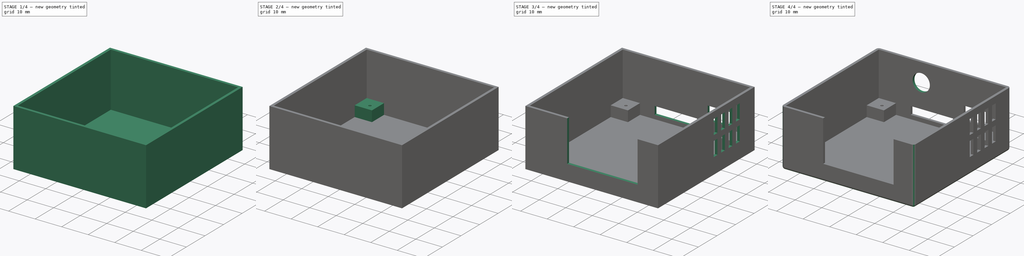
[diagram: build sequence overview — one tinted view per stage of 4, left to right]
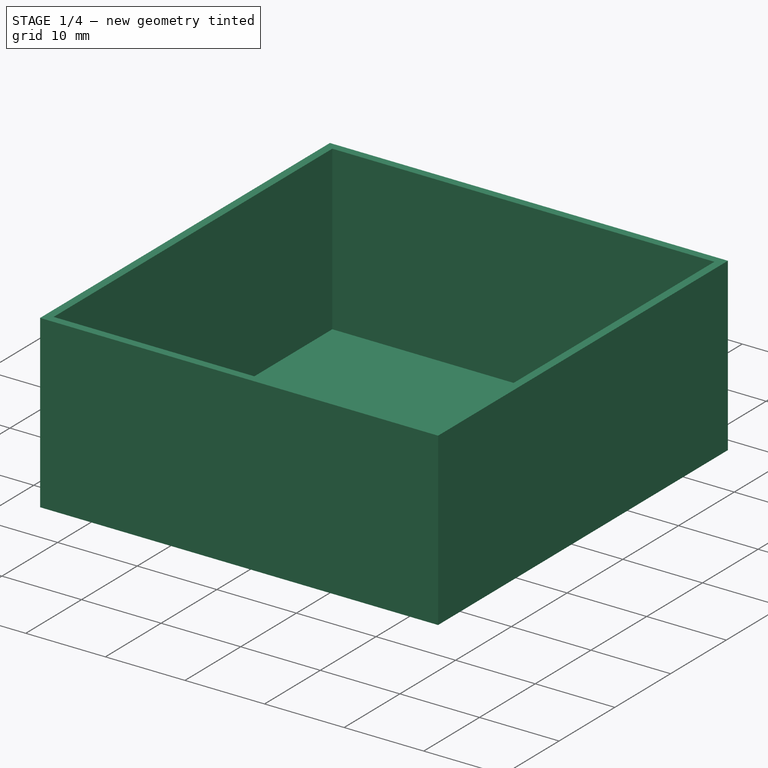
[diagram: stage 1 of 4 — iso view after this stage's code; geometry added in this stage tinted green]
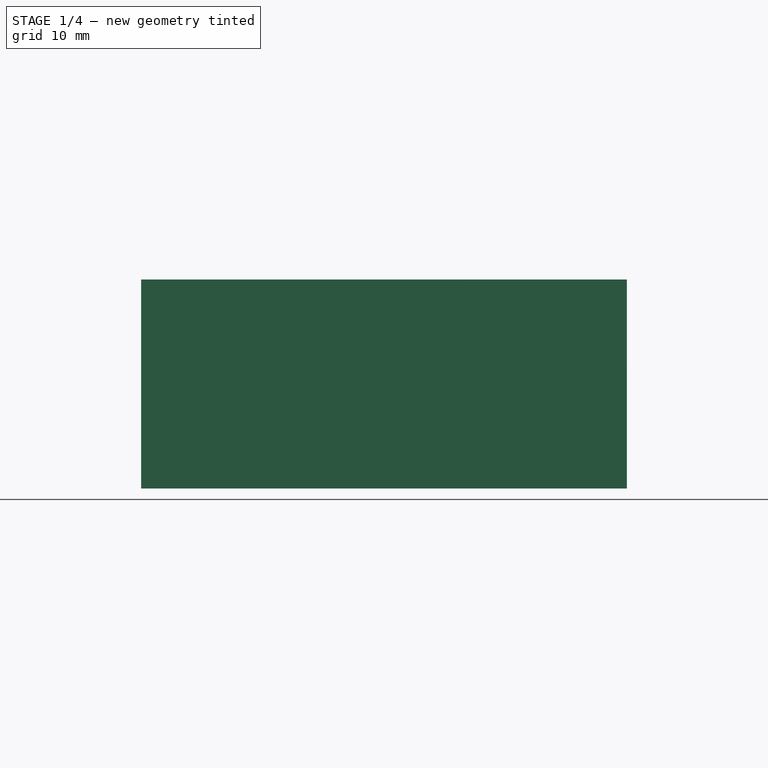
[diagram: stage 1 of 4 — front view after this stage's code; geometry added in this stage tinted green]
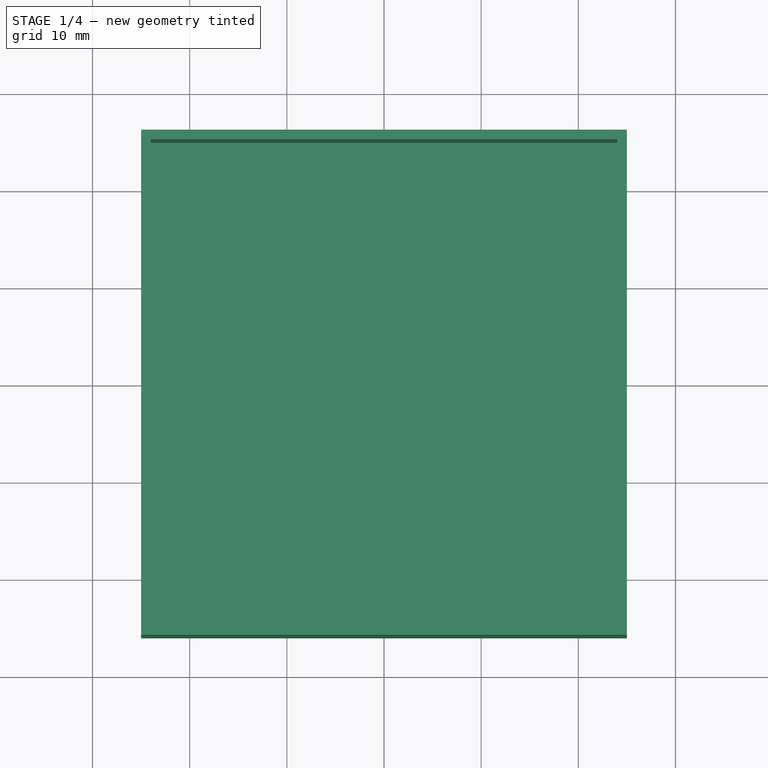
[diagram: stage 1 of 4 — top view after this stage's code; geometry added in this stage tinted green]
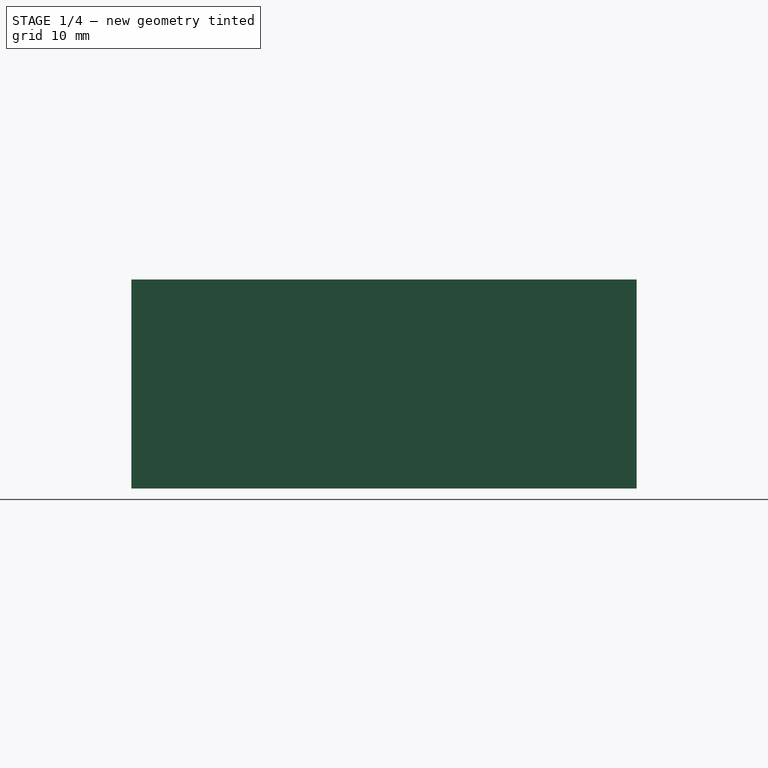
[diagram: stage 1 of 4 — right view after this stage's code; geometry added in this stage tinted green]
FCSTD DOCUMENT  (FreeCAD 0.18R16117 (Git))
Label: Orange Pi Zero Case
License: All rights reserved
LicenseURL: http://en.wikipedia.org/wiki/All_rights_reserved
objects: Sketcher::SketchObject×8, PartDesign::Pocket×6, PartDesign::Pad×2, PartDesign::Plane×1, PartDesign::Fillet×1, PartDesign::Body×1
note: 27 computed .brp shape members not serialized (recipe doc carries the construction recipe); baked Part::Feature solids carry a one-line shape summary decoded from their .brp

FEATURE [Sketcher::SketchObject] Sketch
  MapMode = 5
  Support = -> [XY_Plane]
  sketch-geometry (4):
    g0: LineSegment StartX=-25 StartY=26 StartZ=0 EndX=25 EndY=26 EndZ=0
    g1: LineSegment StartX=25 StartY=26 StartZ=0 EndX=25 EndY=-26 EndZ=0
    g2: LineSegment StartX=25 StartY=-26 StartZ=0 EndX=-25 EndY=-26 EndZ=0
    g3: LineSegment StartX=-25 StartY=-26 StartZ=0 EndX=-25 EndY=26 EndZ=0
  constraints (12):
    c: Coincident(g0,g1)
    c: Coincident(g1,g2)
    c: Coincident(g2,g3)
    c: Coincident(g3,g0)
    c: Horizontal(g0)
    c: Horizontal(g2)
    c: Vertical(g1)
    c: Vertical(g3)
    c: Distance(g0) = 50
    c: Distance(g3) = 52
    c: DistanceX(g0) = 25
    c: DistanceY(g0) = 26
FEATURE [PartDesign::Pad] Pad
  Length = 21.5
  Length2 = 100
  Profile = -> Sketch
  Type = 0
FEATURE [Sketcher::SketchObject] Sketch001
  ExternalGeometry = -> [Pad]
  MapMode = 5
  Placement = pos=(0,0,21.5) rot=(0,0,1;0rad)
  Support = -> [Pad]
  sketch-geometry (4):
    g0: LineSegment StartX=-24 StartY=25 StartZ=0 EndX=24 EndY=25 EndZ=0
    g1: LineSegment StartX=24 StartY=25 StartZ=0 EndX=24 EndY=-25 EndZ=0
    g2: LineSegment StartX=24 StartY=-25 StartZ=0 EndX=-24 EndY=-25 EndZ=0
    g3: LineSegment StartX=-24 StartY=-25 StartZ=0 EndX=-24 EndY=25 EndZ=0
  constraints (12):
    c: Coincident(g0,g1)
    c: Coincident(g1,g2)
    c: Coincident(g2,g3)
    c: Coincident(g3,g0)
    c: Horizontal(g0)
    c: Horizontal(g2)
    c: Vertical(g1)
    c: Vertical(g3)
    c: DistanceX(g-3,g0) = 1
    c: DistanceY(g0,g-3) = 1
    c: DistanceY(g-3,g2) = 1
    c: DistanceX(g0,g-4) = 1
FEATURE [PartDesign::Pocket] Pocket
  BaseFeature = -> Pad
  Length = 20.5
  Length2 = 100
  Profile = -> Sketch001
  Type = 0
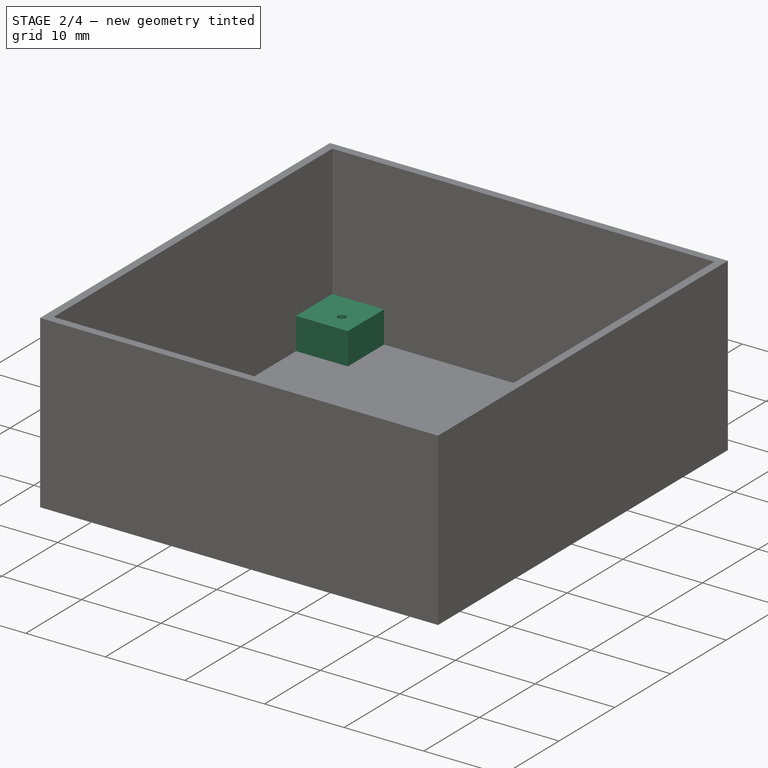
[diagram: stage 2 of 4 — iso view after this stage's code; geometry added in this stage tinted green]
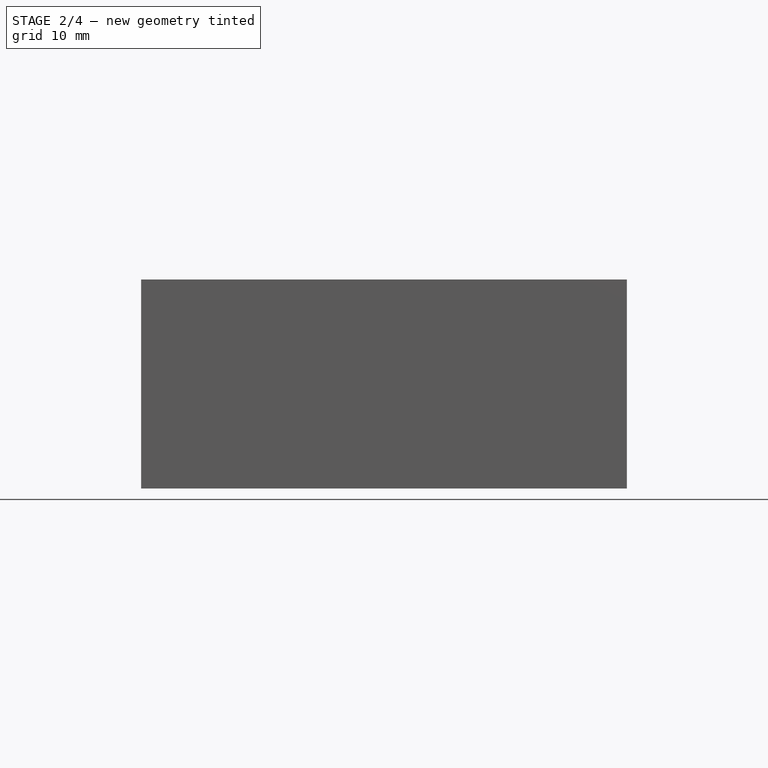
[diagram: stage 2 of 4 — front view after this stage's code; geometry added in this stage tinted green]
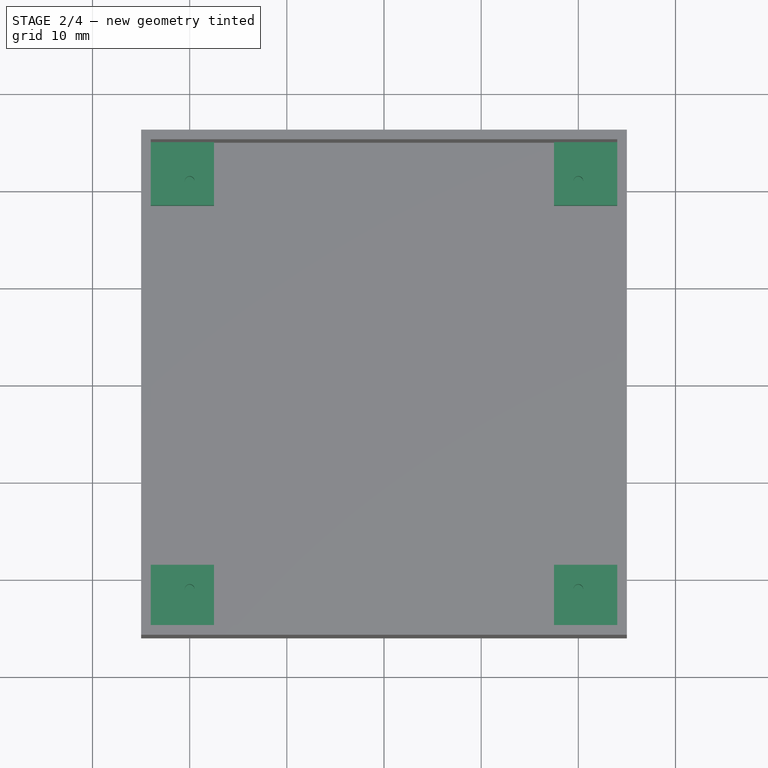
[diagram: stage 2 of 4 — top view after this stage's code; geometry added in this stage tinted green]
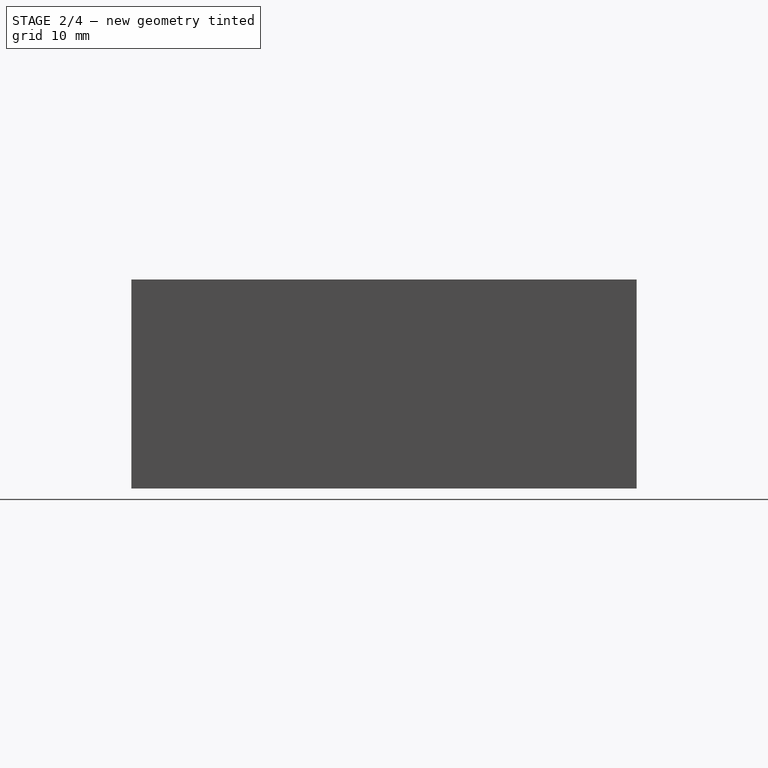
[diagram: stage 2 of 4 — right view after this stage's code; geometry added in this stage tinted green]
FEATURE [Sketcher::SketchObject] Sketch002
  ExternalGeometry = -> [Pocket]
  MapMode = 5
  Placement = pos=(0,0,1) rot=(0,0,1;0rad)
  Support = -> [Pocket]
  sketch-geometry (16):
    g0: LineSegment StartX=-24 StartY=25 StartZ=0 EndX=-17.5 EndY=25 EndZ=0
    g1: LineSegment StartX=-17.5 StartY=25 StartZ=0 EndX=-17.5 EndY=18.5 EndZ=0
    g2: LineSegment StartX=-17.5 StartY=18.5 StartZ=0 EndX=-24 EndY=18.5 EndZ=0
    g3: LineSegment StartX=-24 StartY=18.5 StartZ=0 EndX=-24 EndY=25 EndZ=0
    g4: LineSegment StartX=17.5 StartY=25 StartZ=0 EndX=24 EndY=25 EndZ=0
    g5: LineSegment StartX=24 StartY=25 StartZ=0 EndX=24 EndY=18.5 EndZ=0
    g6: LineSegment StartX=24 StartY=18.5 StartZ=0 EndX=17.5 EndY=18.5 EndZ=0
    g7: LineSegment StartX=17.5 StartY=18.5 StartZ=0 EndX=17.5 EndY=25 EndZ=0
    g8: LineSegment StartX=-24 StartY=-18.5 StartZ=0 EndX=-17.5 EndY=-18.5 EndZ=0
    g9: LineSegment StartX=-17.5 StartY=-18.5 StartZ=0 EndX=-17.5 EndY=-25 EndZ=0
    g10: LineSegment StartX=-17.5 StartY=-25 StartZ=0 EndX=-24 EndY=-25 EndZ=0
    g11: LineSegment StartX=-24 StartY=-25 StartZ=0 EndX=-24 EndY=-18.5 EndZ=0
    g12: LineSegment StartX=17.5 StartY=-18.5 StartZ=0 EndX=24 EndY=-18.5 EndZ=0
    g13: LineSegment StartX=24 StartY=-18.5 StartZ=0 EndX=24 EndY=-25 EndZ=0
    g14: LineSegment StartX=24 StartY=-25 StartZ=0 EndX=17.5 EndY=-25 EndZ=0
    g15: LineSegment StartX=17.5 StartY=-25 StartZ=0 EndX=17.5 EndY=-18.5 EndZ=0
  constraints (44):
    c: Coincident(g0,g1)
    c: Coincident(g1,g2)
    c: Coincident(g2,g3)
    c: Coincident(g3,g0)
    c: Horizontal(g0)
    c: Horizontal(g2)
    c: Vertical(g1)
    c: Vertical(g3)
    c: Coincident(g4,g5)
    c: Coincident(g5,g6)
    c: Coincident(g6,g7)
    c: Coincident(g7,g4)
    c: Horizontal(g4)
    c: Horizontal(g6)
    c: Vertical(g5)
    c: Vertical(g7)
    c: Coincident(g8,g9)
    c: Coincident(g9,g10)
    c: Coincident(g10,g11)
    c: Coincident(g11,g8)
    c: Horizontal(g8)
    c: Horizontal(g10)
    c: Vertical(g9)
    c: Vertical(g11)
    c: Coincident(g12,g13)
    c: Coincident(g13,g14)
    c: Coincident(g14,g15)
    c: Coincident(g15,g12)
    c: Horizontal(g12)
    c: Horizontal(g14)
    c: Vertical(g13)
    c: Vertical(g15)
    c: Coincident(g0,g-3)
    c: Distance(g2) = 6.5
    c: Distance(g1) = 6.5
    c: Coincident(g4,g-4)
    c: Coincident(g13,g-4)
    c: Coincident(g10,g-3)
    c: Distance(g8) = 6.5
    c: Distance(g9) = 6.5
    c: Distance(g7) = 6.5
    c: Distance(g6) = 6.5
    c: Distance(g12) = 6.5
    c: Distance(g15) = 6.5
FEATURE [PartDesign::Pad] Pad001
  BaseFeature = -> Pocket
  Length = 4
  Length2 = 100
  Profile = -> Sketch002
  Type = 0
FEATURE [PartDesign::Plane] DatumPlane
  Length = 60.198
  MapMode = 5
  Placement = pos=(0,0,5) rot=(0,0,1;0rad)
  ResizeMode = 0
  Support = -> [Pad001]
  Width = 62.198
FEATURE [Sketcher::SketchObject] Sketch003
  MapMode = 5
  Placement = pos=(0,0,5) rot=(0,0,1;0rad)
  Support = -> [DatumPlane]
  sketch-geometry (4):
    g0: Circle CenterX=-20 CenterY=21 CenterZ=0 NormalX=0 NormalY=0 NormalZ=1 AngleXU=0 Radius=0.5
    g1: Circle CenterX=20 CenterY=21 CenterZ=0 NormalX=0 NormalY=0 NormalZ=1 AngleXU=0 Radius=0.5
    g2: Circle CenterX=-20 CenterY=-21 CenterZ=0 NormalX=0 NormalY=0 NormalZ=1 AngleXU=0 Radius=0.5
    g3: Circle CenterX=20 CenterY=-21 CenterZ=0 NormalX=0 NormalY=0 NormalZ=1 AngleXU=0 Radius=0.5
  constraints (12):
    c: Diameter(g0) = 1
    c: Diameter(g1) = 1
    c: Diameter(g2) = 1
    c: Diameter(g3) = 1
    c: DistanceX(g0) = -20
    c: DistanceY(g0) = 21
    c: DistanceX(g1) = 20
    c: DistanceY(g1) = 21
    c: DistanceX(g2) = -20
    c: DistanceY(g2) = -21
    c: DistanceX(g3) = 20
    c: DistanceY(g3) = -21
FEATURE [PartDesign::Pocket] Pocket001
  BaseFeature = -> Pad001
  Length = 3
  Length2 = 100
  Profile = -> Sketch003
  Type = 0
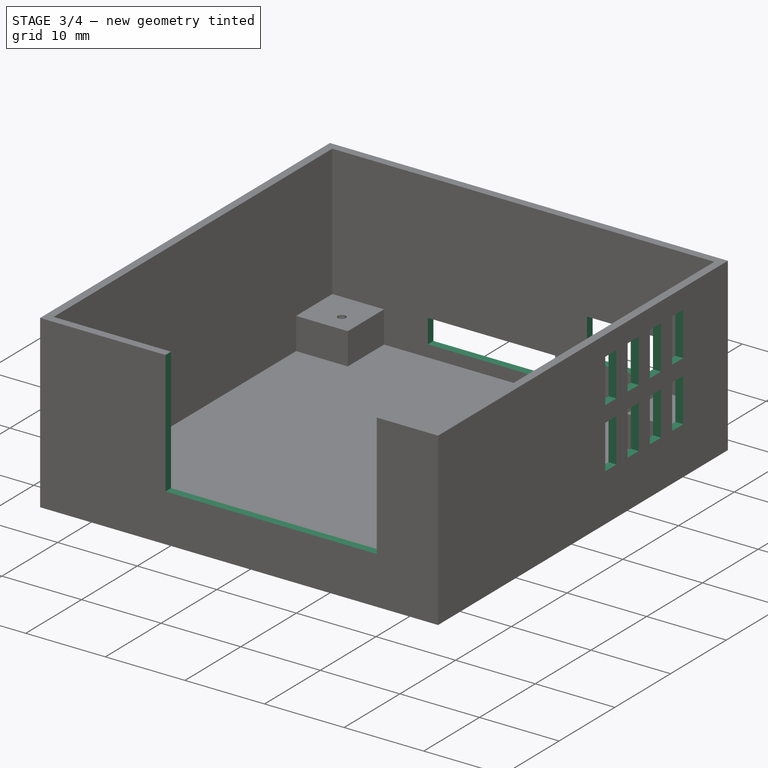
[diagram: stage 3 of 4 — iso view after this stage's code; geometry added in this stage tinted green]
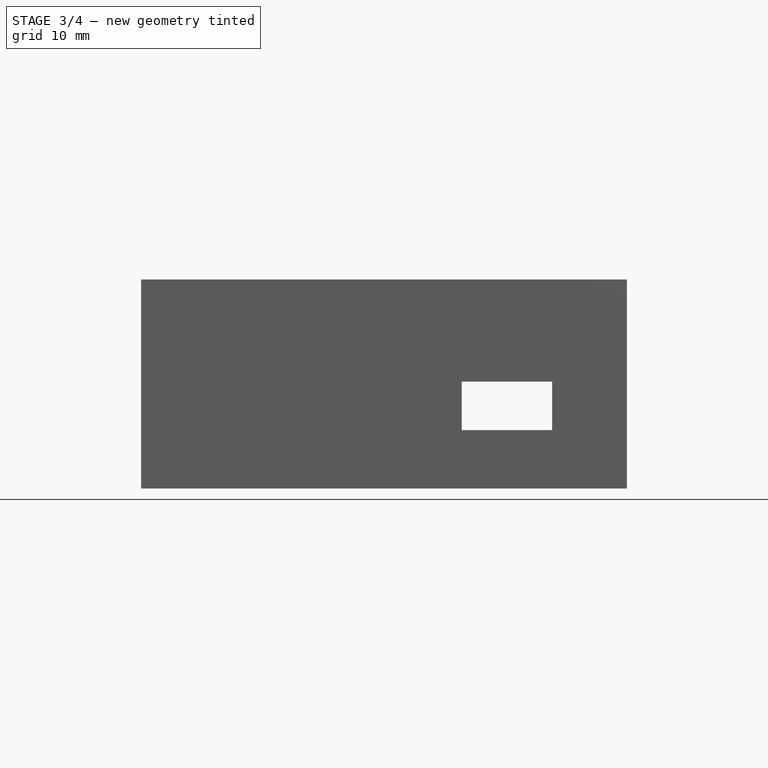
[diagram: stage 3 of 4 — front view after this stage's code; geometry added in this stage tinted green]
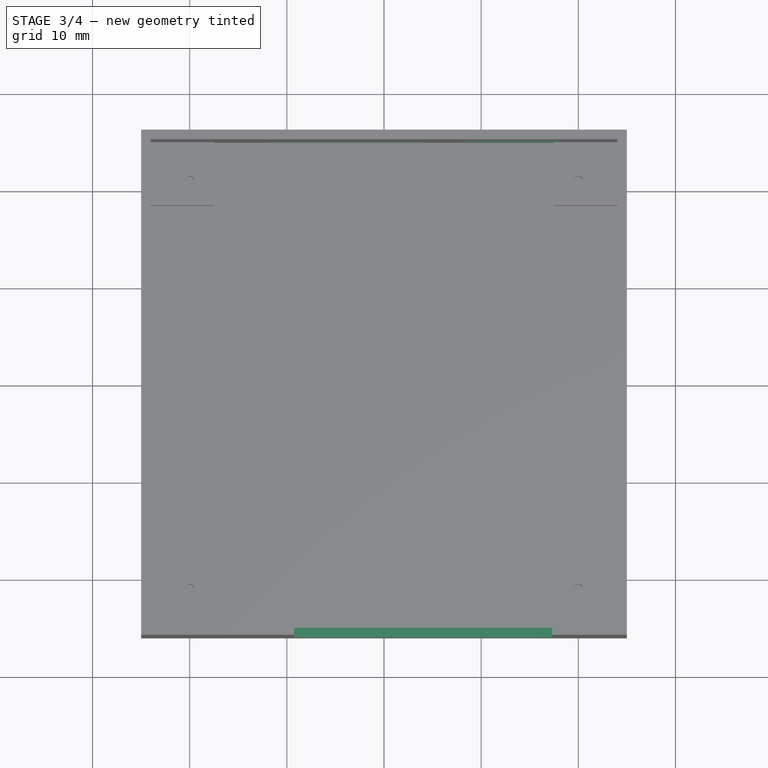
[diagram: stage 3 of 4 — top view after this stage's code; geometry added in this stage tinted green]
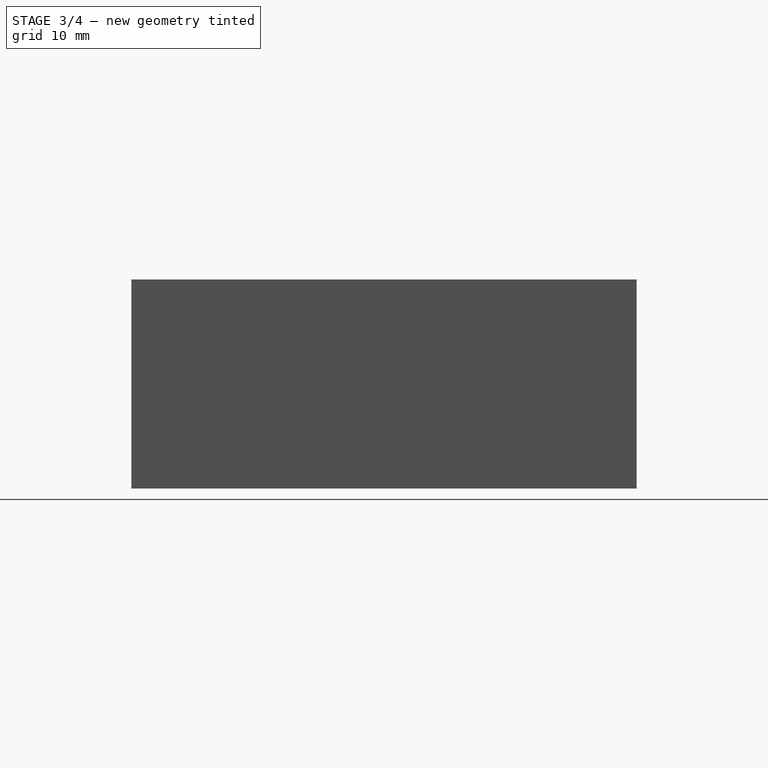
[diagram: stage 3 of 4 — right view after this stage's code; geometry added in this stage tinted green]
FEATURE [Sketcher::SketchObject] Sketch004
  ExternalGeometry = -> [Pocket001]
  MapMode = 5
  Placement = pos=(0,-26,0) rot=(1,0,0;1.5708rad)
  Support = -> [Pocket001]
  sketch-geometry (4):
    g0: LineSegment StartX=-9.25 StartY=21.5 StartZ=0 EndX=17.3 EndY=21.5 EndZ=0
    g1: LineSegment StartX=17.3 StartY=21.5 StartZ=0 EndX=17.3 EndY=6 EndZ=0
    g2: LineSegment StartX=17.3 StartY=6 StartZ=0 EndX=-9.25 EndY=6 EndZ=0
    g3: LineSegment StartX=-9.25 StartY=6 StartZ=0 EndX=-9.25 EndY=21.5 EndZ=0
  constraints (12):
    c: Coincident(g0,g1)
    c: Coincident(g1,g2)
    c: Coincident(g2,g3)
    c: Coincident(g3,g0)
    c: Horizontal(g0)
    c: Horizontal(g2)
    c: Vertical(g1)
    c: Vertical(g3)
    c: DistanceX(g-4,g0) = 14.75
    c: DistanceY(g-3,g2) = 1
    c: Distance(g3) = 15.5
    c: DistanceX(g2,g2) = 26.55
FEATURE [PartDesign::Pocket] Pocket002
  BaseFeature = -> Pocket001
  Length = 1
  Length2 = 100
  Profile = -> Sketch004
  Type = 0
FEATURE [Sketcher::SketchObject] Sketch005
  ExternalGeometry = -> [Pocket002]
  MapMode = 5
  Placement = pos=(0,26,0) rot=(0,0.707107,0.707107;3.14159rad)
  Support = -> [Pocket002]
  sketch-geometry (8):
    g0: LineSegment StartX=-18 StartY=11 StartZ=0 EndX=-8 EndY=11 EndZ=0
    g1: LineSegment StartX=-8 StartY=11 StartZ=0 EndX=-8 EndY=6 EndZ=0
    g2: LineSegment StartX=-8 StartY=6 StartZ=0 EndX=-18 EndY=6 EndZ=0
    g3: LineSegment StartX=-18 StartY=6 StartZ=0 EndX=-18 EndY=11 EndZ=0
    g4: LineSegment StartX=-4 StartY=5.5 StartZ=0 EndX=12 EndY=5.5 EndZ=0
    g5: LineSegment StartX=12 StartY=5.5 StartZ=0 EndX=12 EndY=2.5 EndZ=0
    g6: LineSegment StartX=12 StartY=2.5 StartZ=0 EndX=-4 EndY=2.5 EndZ=0
    g7: LineSegment StartX=-4 StartY=2.5 StartZ=0 EndX=-4 EndY=5.5 EndZ=0
  constraints (24):
    c: Coincident(g0,g1)
    c: Coincident(g1,g2)
    c: Coincident(g2,g3)
    c: Coincident(g3,g0)
    c: Horizontal(g0)
    c: Horizontal(g2)
    c: Vertical(g1)
    c: Vertical(g3)
    c: Coincident(g4,g5)
    c: Coincident(g5,g6)
    c: Coincident(g6,g7)
    c: Coincident(g7,g4)
    c: Horizontal(g4)
    c: Horizontal(g6)
    c: Vertical(g5)
    c: Vertical(g7)
    c: DistanceX(g-4,g0) = 6
    c: Distance(g0) = 10
    c: Distance(g3) = 5
    c: DistanceX(g4,g-5) = 12
    c: Distance(g7) = 3
    c: Distance(g4) = 16
    c: DistanceY(g2,g-3) = -1
    c: DistanceY(g4,g-3) = -0.5
FEATURE [PartDesign::Pocket] Pocket003
  BaseFeature = -> Pocket002
  Length = 1
  Length2 = 100
  Profile = -> Sketch005
  Type = 0
FEATURE [Sketcher::SketchObject] Sketch006
  ExternalGeometry = -> [DatumPlane,Pocket003]
  MapMode = 5
  Placement = pos=(25,0,0) rot=(0.57735,0.57735,0.57735;2.0944rad)
  sketch-geometry (32):
    g0: LineSegment StartX=16 StartY=19 StartZ=0 EndX=18 EndY=19 EndZ=0
    g1: LineSegment StartX=18 StartY=19 StartZ=0 EndX=18 EndY=13.5 EndZ=0
    g2: LineSegment StartX=18 StartY=13.5 StartZ=0 EndX=16 EndY=13.5 EndZ=0
    g3: LineSegment StartX=16 StartY=13.5 StartZ=0 EndX=16 EndY=19 EndZ=0
    g4: LineSegment StartX=12 StartY=19 StartZ=0 EndX=14 EndY=19 EndZ=0
    g5: LineSegment StartX=14 StartY=19 StartZ=0 EndX=14 EndY=13.5 EndZ=0
    g6: LineSegment StartX=14 StartY=13.5 StartZ=0 EndX=12 EndY=13.5 EndZ=0
    g7: LineSegment StartX=12 StartY=13.5 StartZ=0 EndX=12 EndY=19 EndZ=0
    g8: LineSegment StartX=8 StartY=19 StartZ=0 EndX=10 EndY=19 EndZ=0
    g9: LineSegment StartX=10 StartY=19 StartZ=0 EndX=10 EndY=13.5 EndZ=0
    g10: LineSegment StartX=10 StartY=13.5 StartZ=0 EndX=8 EndY=13.5 EndZ=0
    g11: LineSegment StartX=8 StartY=13.5 StartZ=0 EndX=8 EndY=19 EndZ=0
    g12: LineSegment StartX=4 StartY=19 StartZ=0 EndX=6 EndY=19 EndZ=0
    g13: LineSegment StartX=6 StartY=19 StartZ=0 EndX=6 EndY=13.5 EndZ=0
    g14: LineSegment StartX=6 StartY=13.5 StartZ=0 EndX=4 EndY=13.5 EndZ=0
    g15: LineSegment StartX=4 StartY=13.5 StartZ=0 EndX=4 EndY=19 EndZ=0
    g16: LineSegment StartX=4 StartY=11.5 StartZ=0 EndX=6 EndY=11.5 EndZ=0
    g17: LineSegment StartX=6 StartY=11.5 StartZ=0 EndX=6 EndY=6 EndZ=0
    g18: LineSegment StartX=6 StartY=6 StartZ=0 EndX=4 EndY=6 EndZ=0
    g19: LineSegment StartX=4 StartY=6 StartZ=0 EndX=4 EndY=11.5 EndZ=0
    g20: LineSegment StartX=8 StartY=11.5 StartZ=0 EndX=10 EndY=11.5 EndZ=0
    g21: LineSegment StartX=10 StartY=11.5 StartZ=0 EndX=10 EndY=6 EndZ=0
    g22: LineSegment StartX=10 StartY=6 StartZ=0 EndX=8 EndY=6 EndZ=0
    g23: LineSegment StartX=8 StartY=6 StartZ=0 EndX=8 EndY=11.5 EndZ=0
    g24: LineSegment StartX=12 StartY=11.5 StartZ=0 EndX=14 EndY=11.5 EndZ=0
    g25: LineSegment StartX=14 StartY=11.5 StartZ=0 EndX=14 EndY=6 EndZ=0
    g26: LineSegment StartX=14 StartY=6 StartZ=0 EndX=12 EndY=6 EndZ=0
    g27: LineSegment StartX=12 StartY=6 StartZ=0 EndX=12 EndY=11.5 EndZ=0
    g28: LineSegment StartX=16 StartY=11.5 StartZ=0 EndX=18 EndY=11.5 EndZ=0
    g29: LineSegment StartX=18 StartY=11.5 StartZ=0 EndX=18 EndY=6 EndZ=0
    g30: LineSegment StartX=18 StartY=6 StartZ=0 EndX=16 EndY=6 EndZ=0
    g31: LineSegment StartX=16 StartY=6 StartZ=0 EndX=16 EndY=11.5 EndZ=0
  constraints (96):
    c: Coincident(g0,g1)
    c: Coincident(g1,g2)
    c: Coincident(g2,g3)
    c: Coincident(g3,g0)
    c: Horizontal(g0)
    c: Horizontal(g2)
    c: Vertical(g1)
    c: Vertical(g3)
    c: Coincident(g4,g5)
    c: Coincident(g5,g6)
    c: Coincident(g6,g7)
    c: Coincident(g7,g4)
    c: Horizontal(g4)
    c: Horizontal(g6)
    c: Vertical(g5)
    c: Vertical(g7)
    c: Coincident(g8,g9)
    c: Coincident(g9,g10)
    c: Coincident(g10,g11)
    c: Coincident(g11,g8)
    c: Horizontal(g8)
    c: Horizontal(g10)
    c: Vertical(g9)
    c: Vertical(g11)
    c: Coincident(g12,g13)
    c: Coincident(g13,g14)
    c: Coincident(g14,g15)
    c: Coincident(g15,g12)
    c: Horizontal(g12)
    c: Horizontal(g14)
    c: Vertical(g13)
    c: Vertical(g15)
    c: Coincident(g16,g17)
    c: Coincident(g17,g18)
    c: Coincident(g18,g19)
    c: Coincident(g19,g16)
    c: Horizontal(g16)
    c: Horizontal(g18)
    c: Vertical(g17)
    c: Vertical(g19)
    c: Coincident(g20,g21)
    c: Coincident(g21,g22)
    c: Coincident(g22,g23)
    c: Coincident(g23,g20)
    c: Horizontal(g20)
    c: Horizontal(g22)
    c: Vertical(g21)
    c: Vertical(g23)
    c: Coincident(g24,g25)
    c: Coincident(g25,g26)
    c: Coincident(g26,g27)
    c: Coincident(g27,g24)
    c: Horizontal(g24)
    c: Horizontal(g26)
    c: Vertical(g25)
    c: Vertical(g27)
    c: Coincident(g28,g29)
    c: Coincident(g29,g30)
    c: Coincident(g30,g31)
    c: Coincident(g31,g28)
    c: Horizontal(g28)
    c: Horizontal(g30)
    c: Vertical(g29)
    c: Vertical(g31)
    c: Equal(g4,g0)
    c: Equal(g8,g0)
    c: Equal(g12,g0)
    c: Equal(g24,g28)
    c: Equal(g20,g28)
    c: Equal(g16,g28)
    c: Equal(g28,g0)
    c: Equal(g5,g1)
    c: Equal(g9,g1)
    c: Equal(g13,g1)
    c: Equal(g25,g29)
    c: Equal(g21,g29)
    c: Equal(g17,g29)
    c: Equal(g1,g29)
    c: DistanceY(g21,g26) = 0
    c: DistanceY(g17,g26) = 0
    c: DistanceY(g30,g25) = 0
    c: DistanceY(g17,g17) = 5.5
    c: DistanceY(g16,g13) = 2
    c: DistanceX(g12,g12) = 2
    c: DistanceX(g16,g20) = 2
    c: DistanceX(g12,g8) = 2
    c: DistanceX(g8,g6) = 2
    c: DistanceX(g5,g2) = 2
    c: DistanceX(g1,g28) = 0
    c: DistanceX(g24,g28) = 2
    c: DistanceX(g20,g24) = 2
    c: DistanceY(g2,g5) = 0
    c: DistanceY(g28,g1) = 2
    c: DistanceY(g9,g6) = 0
    c: DistanceY(g-4,g29) = 1
    c: DistanceX(g0,g-5) = 8
FEATURE [PartDesign::Pocket] Pocket004
  BaseFeature = -> Pocket003
  Length = 1
  Length2 = 100
  Profile = -> Sketch006
  Type = 0
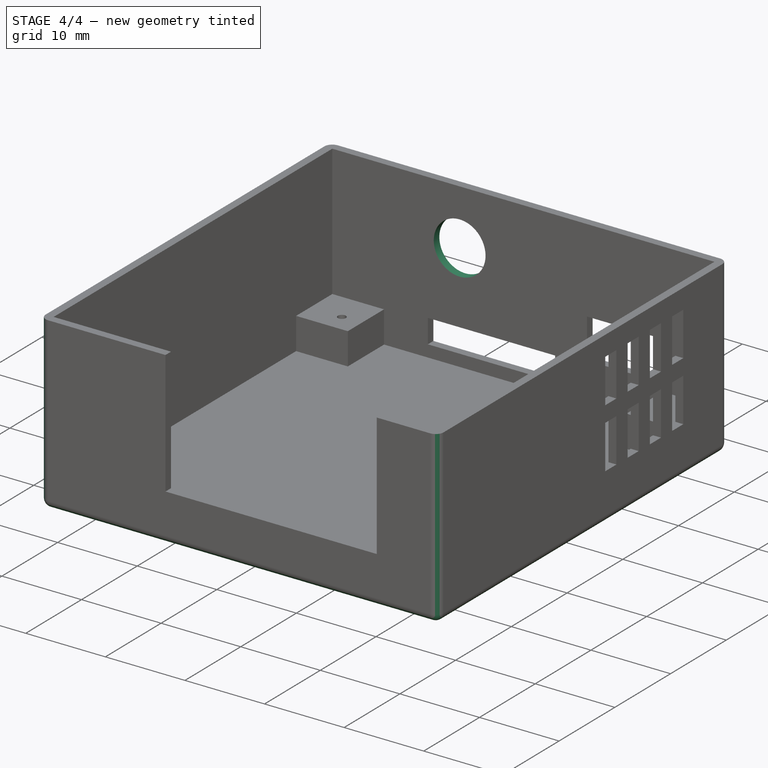
[diagram: stage 4 of 4 — iso view after this stage's code; geometry added in this stage tinted green]
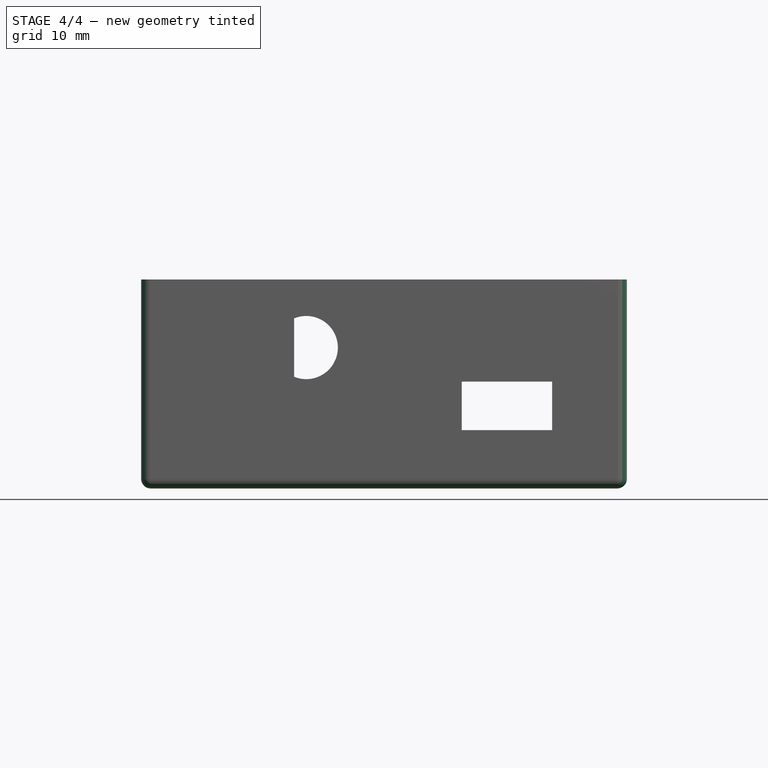
[diagram: stage 4 of 4 — front view after this stage's code; geometry added in this stage tinted green]
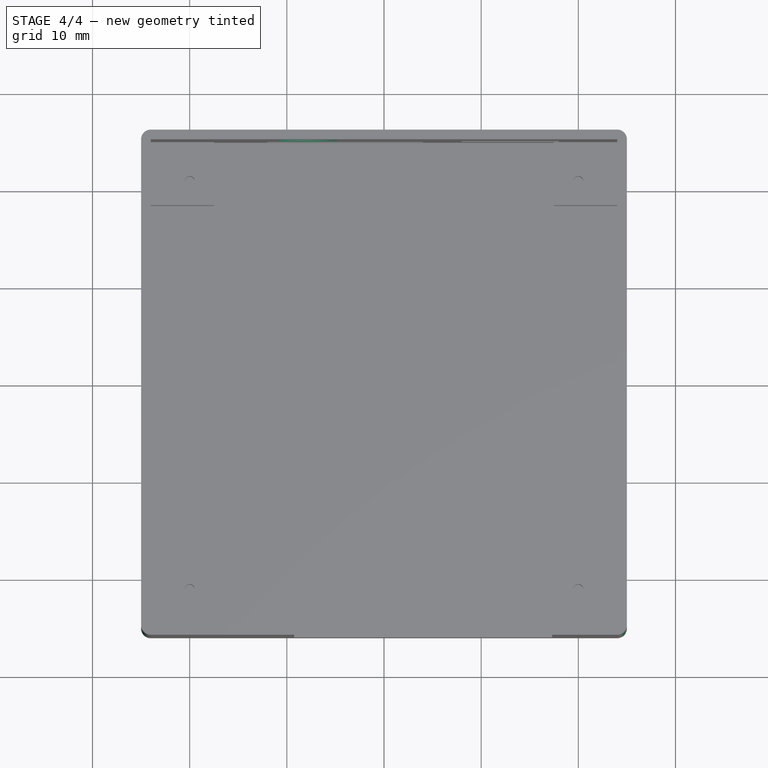
[diagram: stage 4 of 4 — top view after this stage's code; geometry added in this stage tinted green]
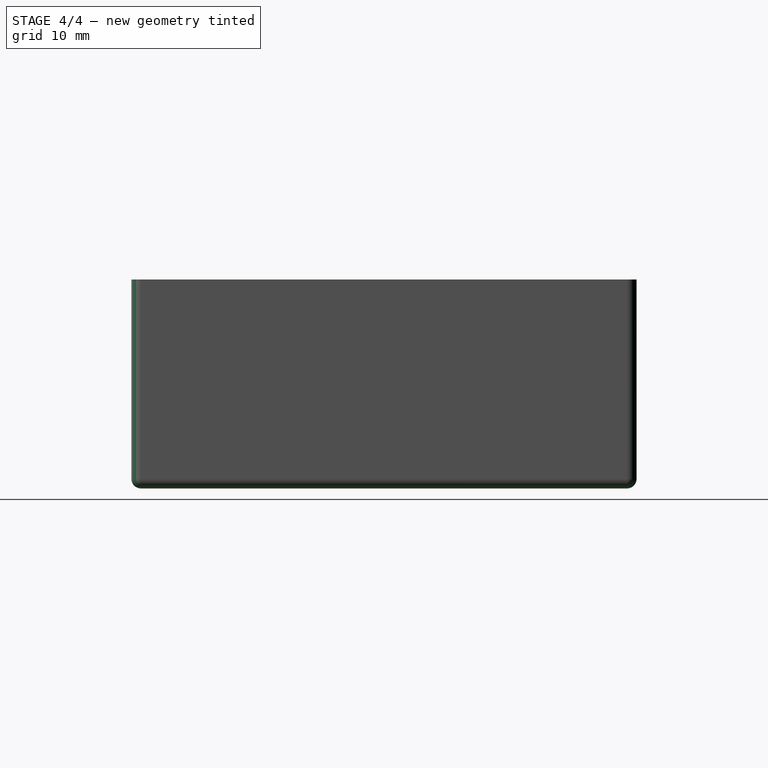
[diagram: stage 4 of 4 — right view after this stage's code; geometry added in this stage tinted green]
FEATURE [PartDesign::Fillet] Fillet
  Base = -> Pocket004 [Edge14,Edge17,Edge16,Edge2,Edge4,Edge28,Edge13,Edge1]
  BaseFeature = -> Pocket004
  Radius = 1
FEATURE [Sketcher::SketchObject] Sketch007
  ExternalGeometry = -> [Fillet]
  MapMode = 5
  Placement = pos=(0,26,0) rot=(0,0.707107,0.707107;3.14159rad)
  Support = -> [Fillet]
  sketch-geometry (1):
    g0: Circle CenterX=8 CenterY=14.5 CenterZ=0 NormalX=0 NormalY=0 NormalZ=1 AngleXU=0 Radius=3.25
  constraints (3):
    c: DistanceY(g0,g-4) = 7
    c: DistanceX(g0,g-3) = 17
    c: Diameter(g0) = 6.5
FEATURE [PartDesign::Pocket] Pocket005
  BaseFeature = -> Fillet
  Length = 1
  Length2 = 100
  Profile = -> Sketch007
  Type = 0
FEATURE [PartDesign::Body] Body
  Group = -> [Sketch,Pad,Sketch001,Pocket,Sketch002,Pad001,DatumPlane,Sketch003,Pocket001,Sketch004,Pocket002,Sketch005,Pocket003,Sketch006,Pocket004,Fillet,Sketch007,Pocket005]
  Origin = -> Origin
  Tip = -> Pocket005
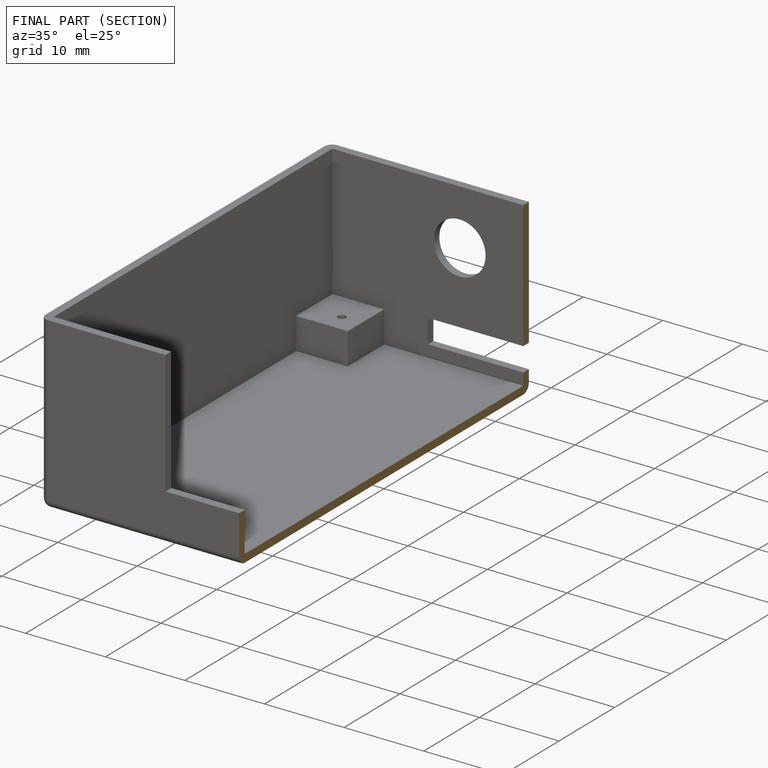
[diagram: finished part — half-section view (interior)]
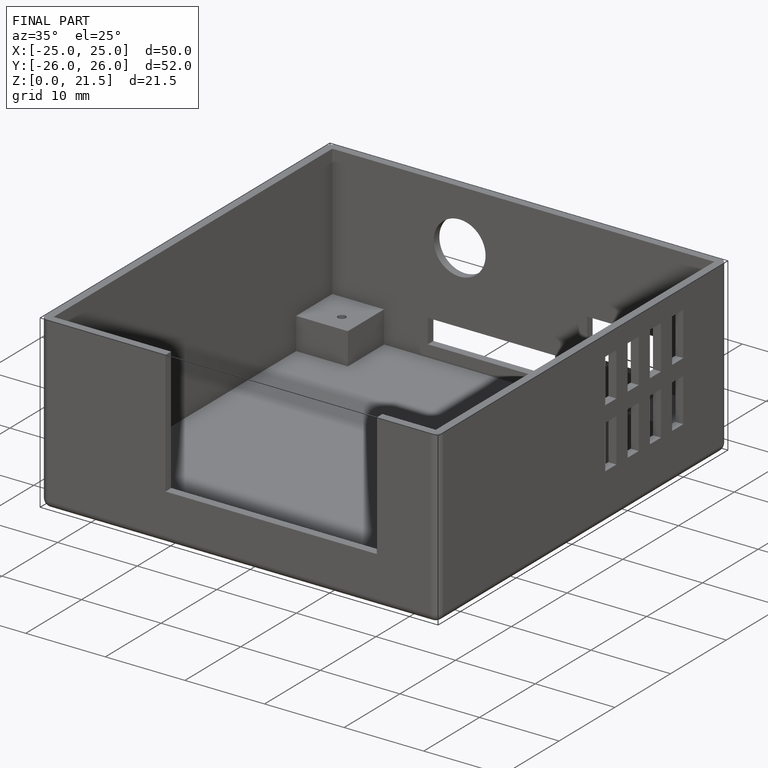
[diagram: finished part — iso view with bounding-box wireframe]
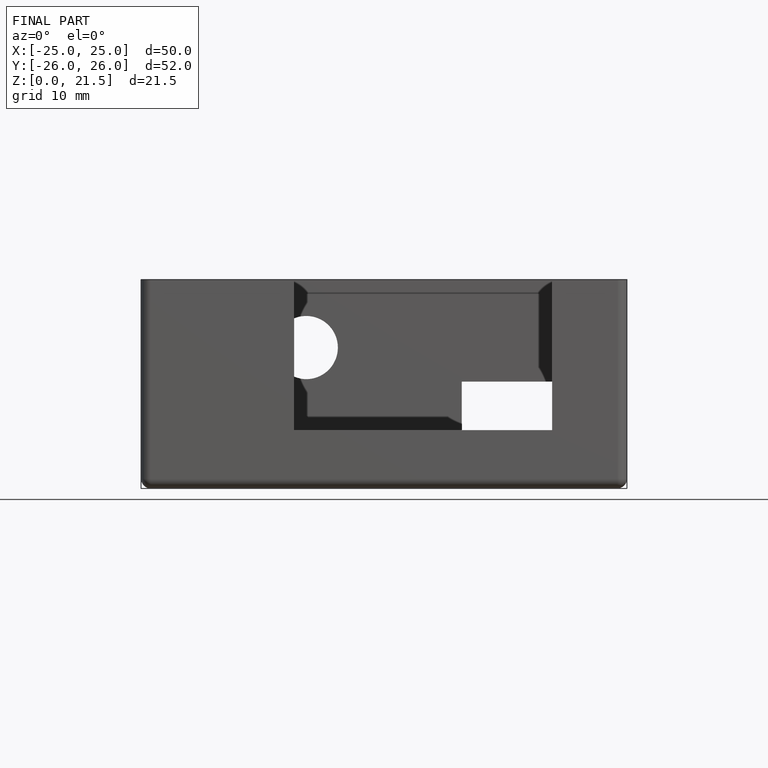
[diagram: finished part — front view with bounding-box wireframe]
